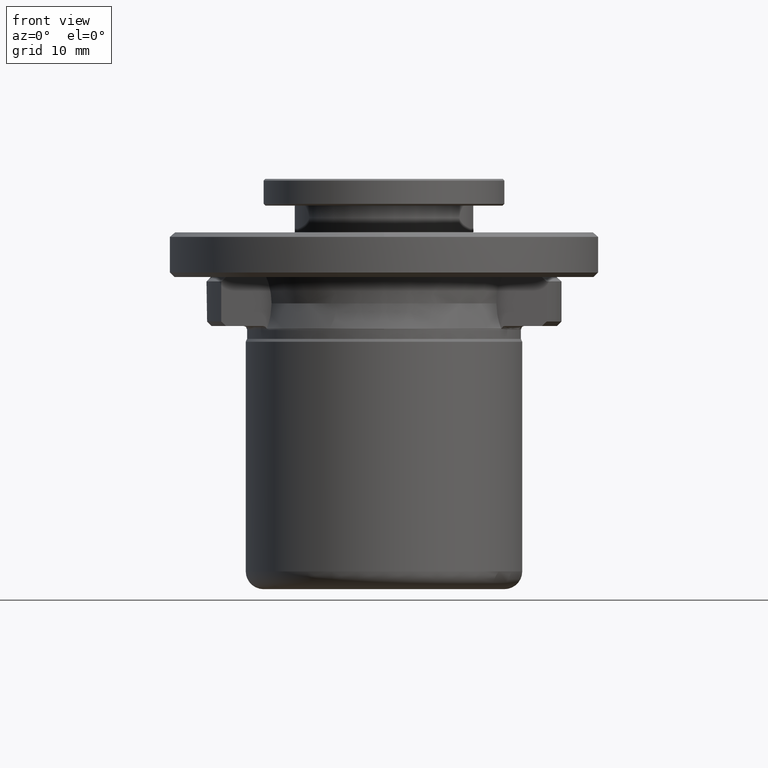
[diagram: clean part render]
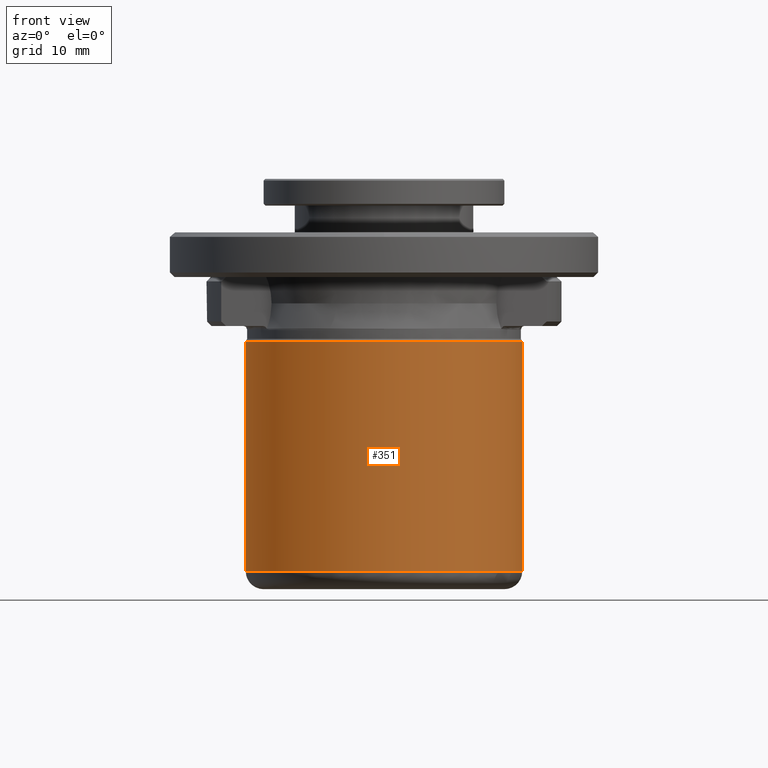
[diagram: same view with one face highlighted and labeled with its STEP entity id]
A machine part, front view. The second image highlights one B-rep face of the part: STEP entity #351.
In plain terms, the highlighted cylindrical surface (partial cylindrical patch) has radius 15.5 mm, axis along (0, -0, 1).
Its self-contained STEP definition (entity closure, byte-faithful):
#32 = FACE_OUTER_BOUND ( 'NONE', #1409, .T. ) ;
#125 = EDGE_CURVE ( 'NONE', #917, #1533, #678, .T. ) ;
#159 = CARTESIAN_POINT ( 'NONE',  ( -15.50000000000000000, 1.898202538678397600E-015, -18.26487427900000100 ) ) ;
#197 = VERTEX_POINT ( 'NONE', #280 ) ;
#263 = VECTOR ( 'NONE', #625, 1000.000000000000000 ) ;
#280 = CARTESIAN_POINT ( 'NONE',  ( 15.50000000000000000, 0.0000000000000000000, -25.56151438499999900 ) ) ;
#285 = CIRCLE ( 'NONE', #348, 15.50000000000000000 ) ;
#348 = AXIS2_PLACEMENT_3D ( 'NONE', #1638, #723, #1780 ) ;
#351 = ADVANCED_FACE ( 'NONE', ( #32 ), #794, .T. ) ;
#625 = DIRECTION ( 'NONE',  ( 0.0000000000000000000, -0.0000000000000000000, 1.000000000000000000 ) ) ;
#675 = LINE ( 'NONE', #1247, #1381 ) ;
#678 = LINE ( 'NONE', #159, #263 ) ;
#723 = DIRECTION ( 'NONE',  ( 0.0000000000000000000, 0.0000000000000000000, 1.000000000000000000 ) ) ;
#733 = CARTESIAN_POINT ( 'NONE',  ( -15.50000000000000000, 1.898202538678397600E-015, -25.56151438499999900 ) ) ;
#750 = ORIENTED_EDGE ( 'NONE', *, *, #1190, .T. ) ;
#794 = CYLINDRICAL_SURFACE ( 'NONE', #1776, 15.50000000000000000 ) ;
#828 = ORIENTED_EDGE ( 'NONE', *, *, #857, .T. ) ;
#837 = VERTEX_POINT ( 'NONE', #1472 ) ;
#840 = DIRECTION ( 'NONE',  ( 0.0000000000000000000, 0.0000000000000000000, -1.000000000000000000 ) ) ;
#857 = EDGE_CURVE ( 'NONE', #917, #197, #285, .T. ) ;
#910 = CARTESIAN_POINT ( 'NONE',  ( 0.0000000000000000000, 0.0000000000000000000, -18.26487427900000100 ) ) ;
#917 = VERTEX_POINT ( 'NONE', #733 ) ;
#947 = DIRECTION ( 'NONE',  ( 0.0000000000000000000, -0.0000000000000000000, 1.000000000000000000 ) ) ;
#1014 = AXIS2_PLACEMENT_3D ( 'NONE', #1749, #840, #1898 ) ;
#1088 = DIRECTION ( 'NONE',  ( 0.0000000000000000000, -0.0000000000000000000, 1.000000000000000000 ) ) ;
#1190 = EDGE_CURVE ( 'NONE', #837, #1533, #1543, .T. ) ;
#1209 = CARTESIAN_POINT ( 'NONE',  ( -15.50000000000000000, 1.898202538678397600E-015, 0.1784856150000013700 ) ) ;
#1247 = CARTESIAN_POINT ( 'NONE',  ( 15.50000000000000000, 0.0000000000000000000, -18.26487427900000100 ) ) ;
#1381 = VECTOR ( 'NONE', #947, 1000.000000000000000 ) ;
#1409 = EDGE_LOOP ( 'NONE', ( #1746, #828, #1962, #750 ) ) ;
#1472 = CARTESIAN_POINT ( 'NONE',  ( 15.50000000000000000, 0.0000000000000000000, 0.1784856150000013700 ) ) ;
#1533 = VERTEX_POINT ( 'NONE', #1209 ) ;
#1543 = CIRCLE ( 'NONE', #1014, 15.50000000000000000 ) ;
#1638 = CARTESIAN_POINT ( 'NONE',  ( 0.0000000000000000000, 0.0000000000000000000, -25.56151438499999900 ) ) ;
#1711 = EDGE_CURVE ( 'NONE', #197, #837, #675, .T. ) ;
#1746 = ORIENTED_EDGE ( 'NONE', *, *, #125, .F. ) ;
#1749 = CARTESIAN_POINT ( 'NONE',  ( 0.0000000000000000000, 0.0000000000000000000, 0.1784856150000013700 ) ) ;
#1776 = AXIS2_PLACEMENT_3D ( 'NONE', #910, #1088, #1857 ) ;
#1780 = DIRECTION ( 'NONE',  ( 1.000000000000000000, 0.0000000000000000000, 0.0000000000000000000 ) ) ;
#1857 = DIRECTION ( 'NONE',  ( 1.000000000000000000, 0.0000000000000000000, 0.0000000000000000000 ) ) ;
#1898 = DIRECTION ( 'NONE',  ( -1.000000000000000000, 0.0000000000000000000, -8.743565907141165300E-017 ) ) ;
#1962 = ORIENTED_EDGE ( 'NONE', *, *, #1711, .T. ) ;